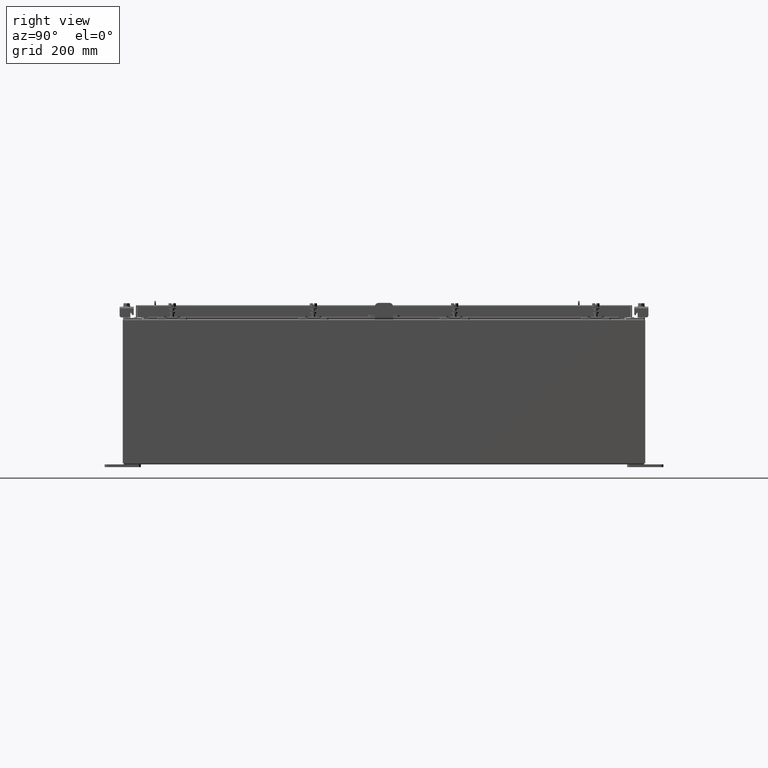
[diagram: clean part render]
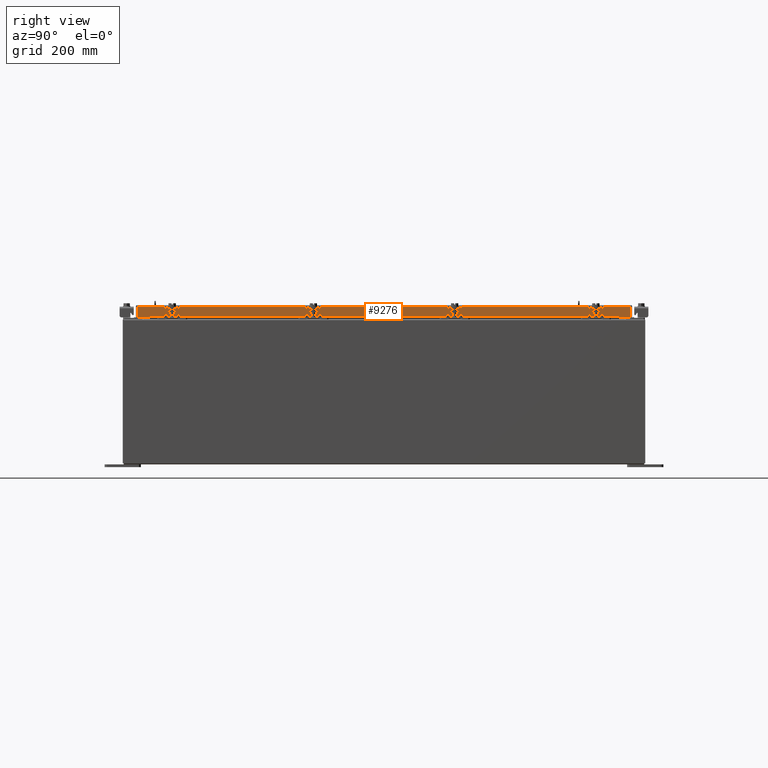
[diagram: same view with one face highlighted and labeled with its STEP entity id]
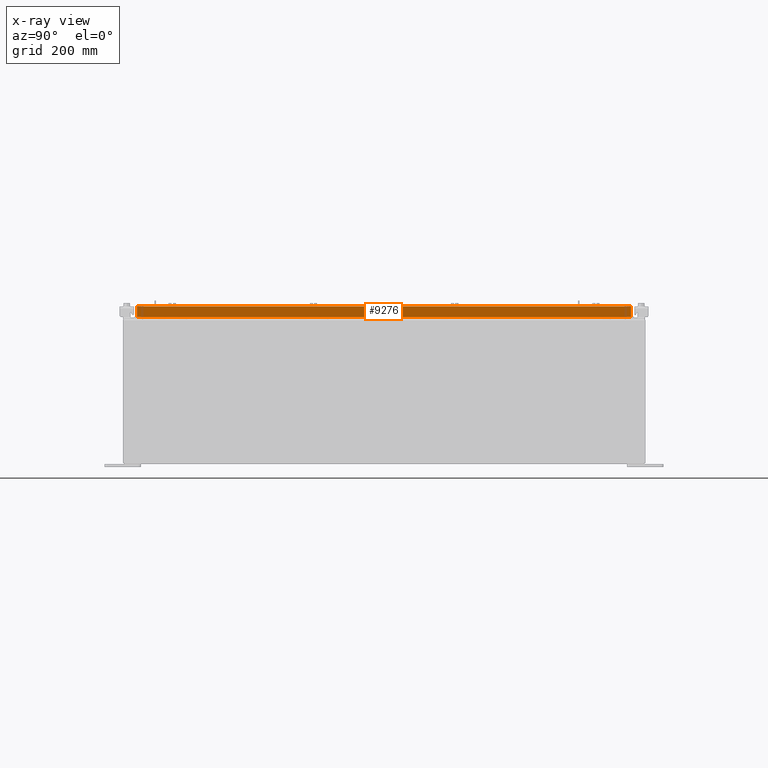
[diagram: x-ray of the same camera — body ghosted, the highlighted face saturated]
A machine part, right view. The second image highlights one B-rep face of the part: STEP entity #9276.
The next image is the same camera in x-ray: the body ghosted, the highlighted face saturated — about 0% of this face is hidden behind the body in this view.
In plain terms, the highlighted planar face has unit normal (1, 0, 0).
Its self-contained STEP definition (entity closure, byte-faithful):
#9 = EDGE_CURVE ( 'NONE', #14577, #4813, #4002, .T. ) ;
#111 = VERTEX_POINT ( 'NONE', #24167 ) ;
#1590 = VERTEX_POINT ( 'NONE', #5614 ) ;
#1744 = DIRECTION ( 'NONE',  ( 0.0000000000000000000, -1.000000000000000000, 0.0000000000000000000 ) ) ;
#1820 = CARTESIAN_POINT ( 'NONE',  ( 14.07799999999999800, -17.00515786437627200, -0.07469999999999978000 ) ) ;
#2109 = ORIENTED_EDGE ( 'NONE', *, *, #16929, .F. ) ;
#2251 = CARTESIAN_POINT ( 'NONE',  ( 14.07799999999999900, -17.09400000000000100, -0.8499999999999996400 ) ) ;
#3090 = CARTESIAN_POINT ( 'NONE',  ( 14.07799999999999600, 16.25515786437627200, -0.8500000000000005300 ) ) ;
#3619 = LINE ( 'NONE', #4692, #23134 ) ;
#4002 = LINE ( 'NONE', #5492, #14086 ) ;
#4010 = CARTESIAN_POINT ( 'NONE',  ( 14.07799999999999800, 0.0000000000000000000, 3.994501956836086200E-014 ) ) ;
#4210 = FACE_OUTER_BOUND ( 'NONE', #12424, .T. ) ;
#4692 = CARTESIAN_POINT ( 'NONE',  ( 14.07799999999999900, -17.09400000000000100, -0.8499999999999996400 ) ) ;
#4813 = VERTEX_POINT ( 'NONE', #14025 ) ;
#5316 = DIRECTION ( 'NONE',  ( -2.818880942772360500E-015, -6.982962677686269100E-015, 1.000000000000000000 ) ) ;
#5492 = CARTESIAN_POINT ( 'NONE',  ( 14.07799999999999800, 17.00515786437626500, 1.586914022634634500E-013 ) ) ;
#5614 = CARTESIAN_POINT ( 'NONE',  ( 14.07799999999999600, 16.25515786437626900, -0.8500000000000005300 ) ) ;
#5831 = CARTESIAN_POINT ( 'NONE',  ( 14.07799999999999600, -16.25515786437626900, -0.8500000000000005300 ) ) ;
#6773 = VECTOR ( 'NONE', #11248, 39.37007874015748100 ) ;
#8653 = VERTEX_POINT ( 'NONE', #21663 ) ;
#9259 = VERTEX_POINT ( 'NONE', #5831 ) ;
#9276 = ADVANCED_FACE ( 'NONE', ( #4210 ), #9730, .T. ) ;
#9552 = AXIS2_PLACEMENT_3D ( 'NONE', #4010, #22971, #11606 ) ;
#9730 = PLANE ( 'NONE',  #9552 ) ;
#11248 = DIRECTION ( 'NONE',  ( -2.818880942772360500E-015, -6.982962677686269100E-015, 1.000000000000000000 ) ) ;
#11302 = ORIENTED_EDGE ( 'NONE', *, *, #18348, .F. ) ;
#11606 = DIRECTION ( 'NONE',  ( 2.818880942772360100E-015, 0.0000000000000000000, -1.000000000000000000 ) ) ;
#11619 = VECTOR ( 'NONE', #1744, 39.37007874015748100 ) ;
#11644 = VECTOR ( 'NONE', #15537, 39.37007874015748100 ) ;
#12424 = EDGE_LOOP ( 'NONE', ( #2109, #19948, #18210, #11302, #21120, #13363 ) ) ;
#13363 = ORIENTED_EDGE ( 'NONE', *, *, #18833, .T. ) ;
#14025 = CARTESIAN_POINT ( 'NONE',  ( 14.07799999999999800, 17.00515786437626200, -0.08770000000000007000 ) ) ;
#14086 = VECTOR ( 'NONE', #5316, 39.37007874015748100 ) ;
#14135 = EDGE_CURVE ( 'NONE', #9259, #111, #3619, .T. ) ;
#14577 = VERTEX_POINT ( 'NONE', #20908 ) ;
#15019 = CARTESIAN_POINT ( 'NONE',  ( 14.07799999999999800, 0.0000000000000000000, -0.08770000000000007000 ) ) ;
#15537 = DIRECTION ( 'NONE',  ( 0.0000000000000000000, -1.000000000000000000, 0.0000000000000000000 ) ) ;
#16039 = DIRECTION ( 'NONE',  ( 0.0000000000000000000, -1.000000000000000000, 0.0000000000000000000 ) ) ;
#16929 = EDGE_CURVE ( 'NONE', #111, #8653, #21864, .T. ) ;
#17266 = LINE ( 'NONE', #15019, #11619 ) ;
#18210 = ORIENTED_EDGE ( 'NONE', *, *, #22528, .F. ) ;
#18348 = EDGE_CURVE ( 'NONE', #14577, #1590, #20563, .T. ) ;
#18833 = EDGE_CURVE ( 'NONE', #4813, #8653, #17266, .T. ) ;
#18895 = VECTOR ( 'NONE', #23836, 39.37007874015748100 ) ;
#19492 = LINE ( 'NONE', #3090, #18895 ) ;
#19948 = ORIENTED_EDGE ( 'NONE', *, *, #14135, .F. ) ;
#20563 = LINE ( 'NONE', #2251, #11644 ) ;
#20908 = CARTESIAN_POINT ( 'NONE',  ( 14.07799999999999900, 17.00515786437627200, -0.8499999999999996400 ) ) ;
#21120 = ORIENTED_EDGE ( 'NONE', *, *, #9, .T. ) ;
#21663 = CARTESIAN_POINT ( 'NONE',  ( 14.07799999999999800, -17.00515786437627200, -0.08770000000000007000 ) ) ;
#21864 = LINE ( 'NONE', #1820, #6773 ) ;
#22528 = EDGE_CURVE ( 'NONE', #1590, #9259, #19492, .T. ) ;
#22971 = DIRECTION ( 'NONE',  ( 1.000000000000000000, 0.0000000000000000000, 2.818880942772360100E-015 ) ) ;
#23134 = VECTOR ( 'NONE', #16039, 39.37007874015748100 ) ;
#23836 = DIRECTION ( 'NONE',  ( 0.0000000000000000000, -1.000000000000000000, 0.0000000000000000000 ) ) ;
#24167 = CARTESIAN_POINT ( 'NONE',  ( 14.07799999999999900, -17.00515786437626900, -0.8499999999999996400 ) ) ;